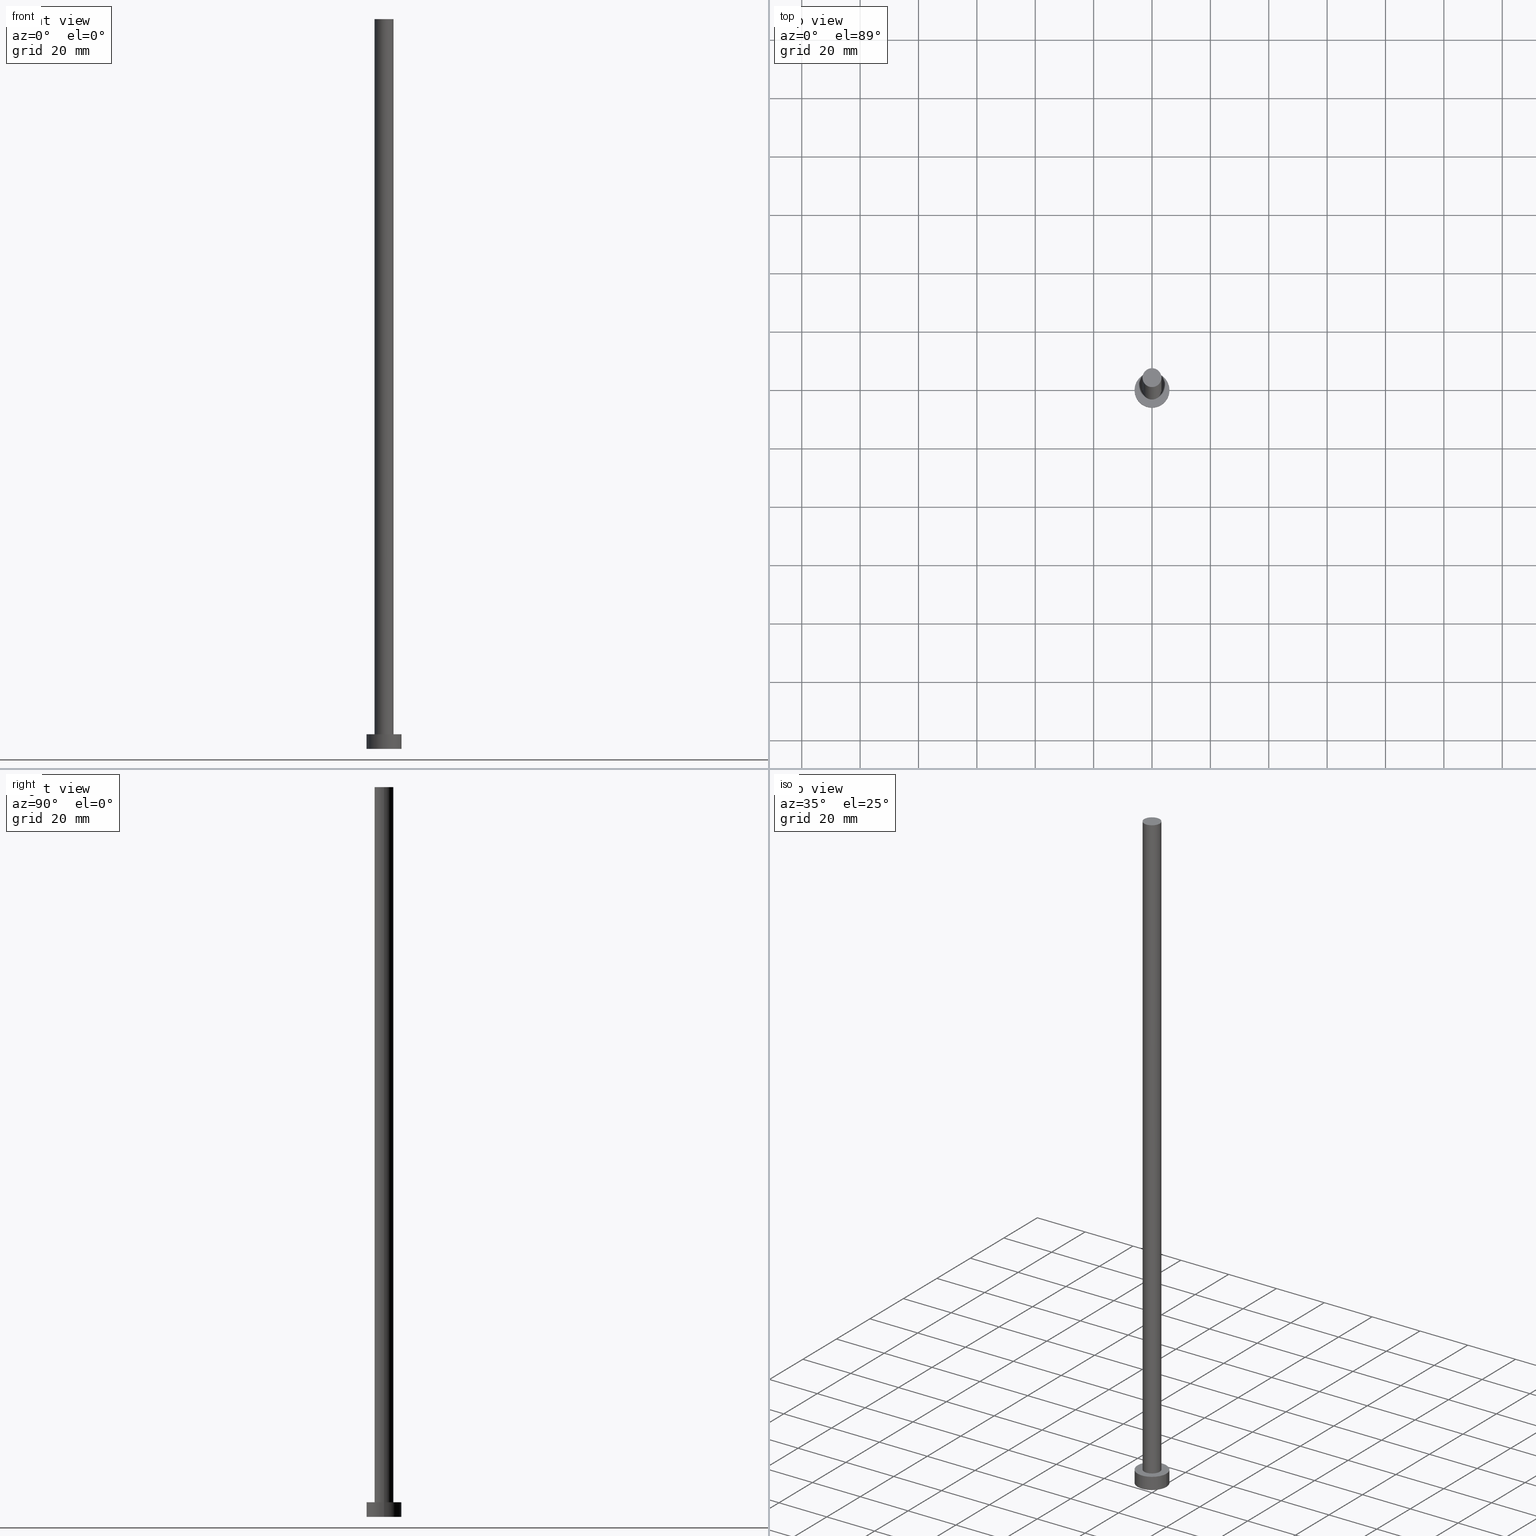
[diagram: canonical four-view strip — front | top / right | iso, engineering-drawing reading convention]
A machine part, canonical four-view strip (front | top / right | iso — engineering-drawing reading convention). The complete STEP part file that produces these views, byte-faithful:
ISO-10303-21;
HEADER;
FILE_DESCRIPTION (( 'STEP AP203' ),
    '1' );
FILE_NAME ('fc5c.STEP',
    '2023-02-13T14:52:59',
    ( '' ),
    ( '' ),
    'SwSTEP 2.0',
    'SolidWorks 2019',
    '' );
FILE_SCHEMA (( 'CONFIG_CONTROL_DESIGN' ));
ENDSEC;

DATA;
#1 = DIRECTION ( 'NONE',  ( -0.000000000000000000, -0.000000000000000000, -1.000000000000000000 ) ) ;
#2 = ORIENTED_EDGE ( 'NONE', *, *, #201, .F. ) ;
#3 = PERSON ( 'NEUR�EN�', 'NEUR�EN�', 'NEUR�EN�', ('NEUR�EN�'), ('NEUR�EN�'), ('NEUR�EN�') ) ;
#4 = DIRECTION ( 'NONE',  ( 0.000000000000000000, 0.000000000000000000, 1.000000000000000000 ) ) ;
#5 = ORIENTED_EDGE ( 'NONE', *, *, #43, .F. ) ;
#6 = DATE_AND_TIME ( #21, #34 ) ;
#7 = CIRCLE ( 'NONE', #137, 6.000000000000000888 ) ;
#8 = UNCERTAINTY_MEASURE_WITH_UNIT (LENGTH_MEASURE( 1.000000000000000082E-05 ), #249, 'distance_accuracy_value', 'NONE');
#9 = CIRCLE ( 'NONE', #33, 6.000000000000000888 ) ;
#10 = DIRECTION ( 'NONE',  ( 1.000000000000000000, 0.000000000000000000, 0.000000000000000000 ) ) ;
#11 = APPROVAL_PERSON_ORGANIZATION ( #226, #122, #71 ) ;
#12 = EDGE_CURVE ( 'NONE', #212, #174, #80, .T. ) ;
#13 = CARTESIAN_POINT ( 'NONE',  ( -3.250000000000000444, 0.000000000000000000, 5.000000000000000000 ) ) ;
#14 = APPROVAL ( #94, 'NEUR�EN�' ) ;
#15 = CARTESIAN_POINT ( 'NONE',  ( 3.250000000000000444, 3.980102097228898231E-16, 250.0000000000000000 ) ) ;
#16 = CYLINDRICAL_SURFACE ( 'NONE', #47, 3.250000000000000444 ) ;
#17 = CYLINDRICAL_SURFACE ( 'NONE', #56, 6.000000000000000888 ) ;
#18 = APPROVAL_DATE_TIME ( #111, #122 ) ;
#19 = DIRECTION ( 'NONE',  ( 0.000000000000000000, 0.000000000000000000, 1.000000000000000000 ) ) ;
#20 = PERSON_AND_ORGANIZATION ( #3, #91 ) ;
#21 = CALENDAR_DATE ( 2023, 13, 2 ) ;
#22 = CARTESIAN_POINT ( 'NONE',  ( 0.000000000000000000, 0.000000000000000000, 250.0000000000000000 ) ) ;
#23 = LINE ( 'NONE', #62, #110 ) ;
#24 = LOCAL_TIME ( 15, 52, 59.00000000000000000, #189 ) ;
#25 = CARTESIAN_POINT ( 'NONE',  ( 0.000000000000000000, 0.000000000000000000, 5.000000000000000000 ) ) ;
#26 = ORIENTED_EDGE ( 'NONE', *, *, #36, .T. ) ;
#27 = CLOSED_SHELL ( 'NONE', ( #86, #102, #156, #175, #54, #112, #192 ) ) ;
#28 = DIRECTION ( 'NONE',  ( 0.000000000000000000, 0.000000000000000000, 1.000000000000000000 ) ) ;
#29 = LINE ( 'NONE', #204, #244 ) ;
#30 = FACE_OUTER_BOUND ( 'NONE', #151, .T. ) ;
#31 = EDGE_LOOP ( 'NONE', ( #96, #164 ) ) ;
#32 = APPLICATION_PROTOCOL_DEFINITION ( 'international standard', 'config_control_design', 1994, #165 ) ;
#33 = AXIS2_PLACEMENT_3D ( 'NONE', #118, #193, #218 ) ;
#34 = LOCAL_TIME ( 15, 52, 59.00000000000000000, #190 ) ;
#35 = COORDINATED_UNIVERSAL_TIME_OFFSET ( 1, 0, .AHEAD. ) ;
#36 = EDGE_CURVE ( 'NONE', #233, #119, #88, .T. ) ;
#37 = PRODUCT_RELATED_PRODUCT_CATEGORY ( 'detail', '', ( #45 ) ) ;
#38 = APPROVAL_DATE_TIME ( #132, #205 ) ;
#39 = APPROVAL_ROLE ( '' ) ;
#40 = ORIENTED_EDGE ( 'NONE', *, *, #12, .T. ) ;
#41 = AXIS2_PLACEMENT_3D ( 'NONE', #68, #236, #69 ) ;
#42 = ORIENTED_EDGE ( 'NONE', *, *, #87, .T. ) ;
#43 = EDGE_CURVE ( 'NONE', #119, #210, #7, .T. ) ;
#44 = CC_DESIGN_APPROVAL ( #205, ( #187 ) ) ;
#45 = PRODUCT ( 'fc5c', 'fc5c', '', ( #127 ) ) ;
#46 = DIRECTION ( 'NONE',  ( 1.000000000000000000, 0.000000000000000000, 0.000000000000000000 ) ) ;
#47 = AXIS2_PLACEMENT_3D ( 'NONE', #202, #92, #166 ) ;
#48 = CC_DESIGN_APPROVAL ( #122, ( #53 ) ) ;
#49 = FACE_OUTER_BOUND ( 'NONE', #250, .T. ) ;
#50 = ADVANCED_BREP_SHAPE_REPRESENTATION ( 'fc5c', ( #116, #245 ), #199 ) ;
#51 = DIRECTION ( 'NONE',  ( 1.000000000000000000, 0.000000000000000000, -0.000000000000000000 ) ) ;
#52 = DIRECTION ( 'NONE',  ( -0.000000000000000000, -0.000000000000000000, -1.000000000000000000 ) ) ;
#53 = PRODUCT_DEFINITION ( 'NEZN�M�', '', #187, #157 ) ;
#54 = ADVANCED_FACE ( 'NONE', ( #182 ), #221, .F. ) ;
#55 = APPROVAL_STATUS ( 'not_yet_approved' ) ;
#56 = AXIS2_PLACEMENT_3D ( 'NONE', #89, #240, #123 ) ;
#57 = COORDINATED_UNIVERSAL_TIME_OFFSET ( 1, 0, .AHEAD. ) ;
#58 = PERSON_AND_ORGANIZATION ( #3, #91 ) ;
#59 = ORIENTED_EDGE ( 'NONE', *, *, #243, .T. ) ;
#60 = CARTESIAN_POINT ( 'NONE',  ( 0.000000000000000000, 0.000000000000000000, 5.000000000000000000 ) ) ;
#61 = ORIENTED_EDGE ( 'NONE', *, *, #243, .F. ) ;
#62 = CARTESIAN_POINT ( 'NONE',  ( -3.250000000000000444, 0.000000000000000000, 250.0000000000000000 ) ) ;
#63 = ORIENTED_EDGE ( 'NONE', *, *, #43, .T. ) ;
#64 = ORIENTED_EDGE ( 'NONE', *, *, #67, .F. ) ;
#65 = CIRCLE ( 'NONE', #143, 6.000000000000000888 ) ;
#66 = FACE_OUTER_BOUND ( 'NONE', #115, .T. ) ;
#67 = EDGE_CURVE ( 'NONE', #233, #82, #65, .T. ) ;
#68 = CARTESIAN_POINT ( 'NONE',  ( 0.000000000000000000, 0.000000000000000000, 5.000000000000000000 ) ) ;
#69 = DIRECTION ( 'NONE',  ( 1.000000000000000000, 0.000000000000000000, 0.000000000000000000 ) ) ;
#70 = DIRECTION ( 'NONE',  ( 1.000000000000000000, 0.000000000000000000, 0.000000000000000000 ) ) ;
#71 = APPROVAL_ROLE ( '' ) ;
#72 = CC_DESIGN_PERSON_AND_ORGANIZATION_ASSIGNMENT ( #207, #74, ( #187 ) ) ;
#73 = DATE_AND_TIME ( #95, #24 ) ;
#74 = PERSON_AND_ORGANIZATION_ROLE ( 'design_supplier' ) ;
#75 = AXIS2_PLACEMENT_3D ( 'NONE', #22, #135, #10 ) ;
#76 = CC_DESIGN_APPROVAL ( #14, ( #160 ) ) ;
#77 = DIRECTION ( 'NONE',  ( 1.000000000000000000, 0.000000000000000000, -0.000000000000000000 ) ) ;
#78 = EDGE_CURVE ( 'NONE', #82, #233, #235, .T. ) ;
#79 = VERTEX_POINT ( 'NONE', #146 ) ;
#80 = CIRCLE ( 'NONE', #108, 3.250000000000000444 ) ;
#81 = FACE_OUTER_BOUND ( 'NONE', #31, .T. ) ;
#82 = VERTEX_POINT ( 'NONE', #161 ) ;
#83 = AXIS2_PLACEMENT_3D ( 'NONE', #60, #117, #46 ) ;
#84 = DIRECTION ( 'NONE',  ( -0.000000000000000000, -0.000000000000000000, -1.000000000000000000 ) ) ;
#85 = DIRECTION ( 'NONE',  ( -0.000000000000000000, -0.000000000000000000, -1.000000000000000000 ) ) ;
#86 = ADVANCED_FACE ( 'NONE', ( #124 ), #16, .T. ) ;
#87 = EDGE_CURVE ( 'NONE', #174, #79, #29, .T. ) ;
#88 = LINE ( 'NONE', #203, #251 ) ;
#89 = CARTESIAN_POINT ( 'NONE',  ( 0.000000000000000000, 0.000000000000000000, 5.000000000000000000 ) ) ;
#90 = CARTESIAN_POINT ( 'NONE',  ( 0.000000000000000000, 0.000000000000000000, 0.000000000000000000 ) ) ;
#91 = ORGANIZATION ( 'NEUR�EN�', 'NEUR�EN�', '' ) ;
#92 = DIRECTION ( 'NONE',  ( -0.000000000000000000, -0.000000000000000000, -1.000000000000000000 ) ) ;
#93 = DATE_TIME_ROLE ( 'creation_date' ) ;
#94 = APPROVAL_STATUS ( 'not_yet_approved' ) ;
#95 = CALENDAR_DATE ( 2023, 13, 2 ) ;
#96 = ORIENTED_EDGE ( 'NONE', *, *, #67, .T. ) ;
#97 = CARTESIAN_POINT ( 'NONE',  ( 0.000000000000000000, 0.000000000000000000, 5.000000000000000000 ) ) ;
#98 = LINE ( 'NONE', #173, #120 ) ;
#99 = CARTESIAN_POINT ( 'NONE',  ( 0.000000000000000000, 0.000000000000000000, 250.0000000000000000 ) ) ;
#100 = VERTEX_POINT ( 'NONE', #13 ) ;
#101 = DIRECTION ( 'NONE',  ( 1.000000000000000000, 0.000000000000000000, -0.000000000000000000 ) ) ;
#102 = ADVANCED_FACE ( 'NONE', ( #66 ), #239, .T. ) ;
#103 = CYLINDRICAL_SURFACE ( 'NONE', #159, 3.250000000000000444 ) ;
#104 = CC_DESIGN_DATE_AND_TIME_ASSIGNMENT ( #73, #149, ( #160 ) ) ;
#105 = DIRECTION ( 'NONE',  ( 1.000000000000000000, 0.000000000000000000, 0.000000000000000000 ) ) ;
#106 = CARTESIAN_POINT ( 'NONE',  ( -6.000000000000000888, 0.000000000000000000, 0.000000000000000000 ) ) ;
#107 = DIRECTION ( 'NONE',  ( 0.000000000000000000, 0.000000000000000000, 1.000000000000000000 ) ) ;
#108 = AXIS2_PLACEMENT_3D ( 'NONE', #162, #126, #179 ) ;
#109 = ORIENTED_EDGE ( 'NONE', *, *, #247, .T. ) ;
#110 = VECTOR ( 'NONE', #84, 1000.000000000000000 ) ;
#111 = DATE_AND_TIME ( #147, #140 ) ;
#112 = ADVANCED_FACE ( 'NONE', ( #30 ), #103, .T. ) ;
#113 = PERSON_AND_ORGANIZATION_ROLE ( 'classification_officer' ) ;
#114 = CIRCLE ( 'NONE', #75, 3.250000000000000444 ) ;
#115 = EDGE_LOOP ( 'NONE', ( #170, #109, #125, #234 ) ) ;
#116 = MANIFOLD_SOLID_BREP ( 'P�idat vysunut�m3', #27 ) ;
#117 = DIRECTION ( 'NONE',  ( 0.000000000000000000, 0.000000000000000000, 1.000000000000000000 ) ) ;
#118 = CARTESIAN_POINT ( 'NONE',  ( 0.000000000000000000, 0.000000000000000000, 0.000000000000000000 ) ) ;
#119 = VERTEX_POINT ( 'NONE', #106 ) ;
#120 = VECTOR ( 'NONE', #1, 1000.000000000000000 ) ;
#121 = APPROVAL_PERSON_ORGANIZATION ( #58, #205, #39 ) ;
#122 = APPROVAL ( #55, 'NEUR�EN�' ) ;
#123 = DIRECTION ( 'NONE',  ( -1.000000000000000000, 0.000000000000000000, 0.000000000000000000 ) ) ;
#124 = FACE_OUTER_BOUND ( 'NONE', #155, .T. ) ;
#125 = ORIENTED_EDGE ( 'NONE', *, *, #237, .T. ) ;
#126 = DIRECTION ( 'NONE',  ( 0.000000000000000000, 0.000000000000000000, 1.000000000000000000 ) ) ;
#127 = MECHANICAL_CONTEXT ( 'NONE', #138, 'mechanical' ) ;
#128 = PERSON_AND_ORGANIZATION ( #3, #91 ) ;
#129 = CC_DESIGN_SECURITY_CLASSIFICATION ( #160, ( #187 ) ) ;
#130 = CALENDAR_DATE ( 2023, 13, 2 ) ;
#131 = CC_DESIGN_PERSON_AND_ORGANIZATION_ASSIGNMENT ( #228, #113, ( #160 ) ) ;
#132 = DATE_AND_TIME ( #130, #216 ) ;
#133 = DIRECTION ( 'NONE',  ( 0.000000000000000000, 0.000000000000000000, 1.000000000000000000 ) ) ;
#134 = EDGE_LOOP ( 'NONE', ( #2, #231 ) ) ;
#135 = DIRECTION ( 'NONE',  ( 0.000000000000000000, 0.000000000000000000, 1.000000000000000000 ) ) ;
#136 =( NAMED_UNIT ( * ) SI_UNIT ( $, .STERADIAN. ) SOLID_ANGLE_UNIT ( ) );
#137 = AXIS2_PLACEMENT_3D ( 'NONE', #238, #186, #183 ) ;
#138 = APPLICATION_CONTEXT ( 'configuration controlled 3d designs of mechanical parts and assemblies' ) ;
#139 = CC_DESIGN_PERSON_AND_ORGANIZATION_ASSIGNMENT ( #128, #206, ( #53 ) ) ;
#140 = LOCAL_TIME ( 15, 52, 59.00000000000000000, #188 ) ;
#141 = DIRECTION ( 'NONE',  ( -1.000000000000000000, 0.000000000000000000, 0.000000000000000000 ) ) ;
#142 = CARTESIAN_POINT ( 'NONE',  ( 0.000000000000000000, 0.000000000000000000, 0.000000000000000000 ) ) ;
#143 = AXIS2_PLACEMENT_3D ( 'NONE', #181, #28, #105 ) ;
#144 = CARTESIAN_POINT ( 'NONE',  ( 0.000000000000000000, 0.000000000000000000, 5.000000000000000000 ) ) ;
#145 = APPROVAL_PERSON_ORGANIZATION ( #20, #14, #208 ) ;
#146 = CARTESIAN_POINT ( 'NONE',  ( 3.250000000000000444, 3.980102097228898231E-16, 5.000000000000000000 ) ) ;
#147 = CALENDAR_DATE ( 2023, 13, 2 ) ;
#148 = CIRCLE ( 'NONE', #83, 3.250000000000000444 ) ;
#149 = DATE_TIME_ROLE ( 'classification_date' ) ;
#150 = SECURITY_CLASSIFICATION_LEVEL ( 'unclassified' ) ;
#151 = EDGE_LOOP ( 'NONE', ( #254, #177, #59, #191 ) ) ;
#152 = ORIENTED_EDGE ( 'NONE', *, *, #237, .F. ) ;
#153 = APPROVAL_DATE_TIME ( #6, #14 ) ;
#154 = ORIENTED_EDGE ( 'NONE', *, *, #213, .T. ) ;
#155 = EDGE_LOOP ( 'NONE', ( #200, #42, #215, #61 ) ) ;
#156 = ADVANCED_FACE ( 'NONE', ( #49 ), #17, .T. ) ;
#157 = DESIGN_CONTEXT ( 'detailed design', #165, 'design' ) ;
#158 = CC_DESIGN_PERSON_AND_ORGANIZATION_ASSIGNMENT ( #168, #246, ( #187 ) ) ;
#159 = AXIS2_PLACEMENT_3D ( 'NONE', #224, #85, #220 ) ;
#160 = SECURITY_CLASSIFICATION ( '', '', #150 ) ;
#161 = CARTESIAN_POINT ( 'NONE',  ( 6.000000000000000888, 7.347880794884120722E-16, 5.000000000000000000 ) ) ;
#162 = CARTESIAN_POINT ( 'NONE',  ( 0.000000000000000000, 0.000000000000000000, 250.0000000000000000 ) ) ;
#163 = DIRECTION ( 'NONE',  ( -0.000000000000000000, -0.000000000000000000, -1.000000000000000000 ) ) ;
#164 = ORIENTED_EDGE ( 'NONE', *, *, #78, .T. ) ;
#165 = APPLICATION_CONTEXT ( 'configuration controlled 3d designs of mechanical parts and assemblies' ) ;
#166 = DIRECTION ( 'NONE',  ( -1.000000000000000000, 0.000000000000000000, 0.000000000000000000 ) ) ;
#167 = PERSON_AND_ORGANIZATION_ROLE ( 'design_owner' ) ;
#168 = PERSON_AND_ORGANIZATION ( #3, #91 ) ;
#169 = CARTESIAN_POINT ( 'NONE',  ( -3.250000000000000444, 0.000000000000000000, 250.0000000000000000 ) ) ;
#170 = ORIENTED_EDGE ( 'NONE', *, *, #78, .F. ) ;
#171 = AXIS2_PLACEMENT_3D ( 'NONE', #142, #19, #51 ) ;
#172 = FACE_BOUND ( 'NONE', #134, .T. ) ;
#173 = CARTESIAN_POINT ( 'NONE',  ( 6.000000000000000888, 7.347880794884120722E-16, 5.000000000000000000 ) ) ;
#174 = VERTEX_POINT ( 'NONE', #15 ) ;
#175 = ADVANCED_FACE ( 'NONE', ( #172, #81 ), #176, .T. ) ;
#176 = PLANE ( 'NONE',  #185 ) ;
#177 = ORIENTED_EDGE ( 'NONE', *, *, #12, .F. ) ;
#178 = CARTESIAN_POINT ( 'NONE',  ( 6.000000000000000888, 7.347880794884120722E-16, 0.000000000000000000 ) ) ;
#179 = DIRECTION ( 'NONE',  ( 1.000000000000000000, 0.000000000000000000, 0.000000000000000000 ) ) ;
#180 = AXIS2_PLACEMENT_3D ( 'NONE', #144, #223, #141 ) ;
#181 = CARTESIAN_POINT ( 'NONE',  ( 0.000000000000000000, 0.000000000000000000, 5.000000000000000000 ) ) ;
#182 = FACE_OUTER_BOUND ( 'NONE', #197, .T. ) ;
#183 = DIRECTION ( 'NONE',  ( 1.000000000000000000, 0.000000000000000000, 0.000000000000000000 ) ) ;
#184 = PERSON_AND_ORGANIZATION ( #3, #91 ) ;
#185 = AXIS2_PLACEMENT_3D ( 'NONE', #25, #133, #101 ) ;
#186 = DIRECTION ( 'NONE',  ( 0.000000000000000000, 0.000000000000000000, 1.000000000000000000 ) ) ;
#187 = PRODUCT_DEFINITION_FORMATION_WITH_SPECIFIED_SOURCE ( 'LIBOVOLN�', '', #45, .NOT_KNOWN. ) ;
#188 = COORDINATED_UNIVERSAL_TIME_OFFSET ( 1, 0, .AHEAD. ) ;
#189 = COORDINATED_UNIVERSAL_TIME_OFFSET ( 1, 0, .AHEAD. ) ;
#190 = COORDINATED_UNIVERSAL_TIME_OFFSET ( 1, 0, .AHEAD. ) ;
#191 = ORIENTED_EDGE ( 'NONE', *, *, #201, .T. ) ;
#192 = ADVANCED_FACE ( 'NONE', ( #253 ), #196, .T. ) ;
#193 = DIRECTION ( 'NONE',  ( 0.000000000000000000, 0.000000000000000000, 1.000000000000000000 ) ) ;
#194 = ORIENTED_EDGE ( 'NONE', *, *, #247, .F. ) ;
#195 = EDGE_CURVE ( 'NONE', #79, #100, #148, .T. ) ;
#196 = PLANE ( 'NONE',  #198 ) ;
#197 = EDGE_LOOP ( 'NONE', ( #5, #152 ) ) ;
#198 = AXIS2_PLACEMENT_3D ( 'NONE', #99, #209, #77 ) ;
#199 =( GEOMETRIC_REPRESENTATION_CONTEXT ( 3 ) GLOBAL_UNCERTAINTY_ASSIGNED_CONTEXT ( ( #8 ) ) GLOBAL_UNIT_ASSIGNED_CONTEXT ( ( #249, #214, #136 ) ) REPRESENTATION_CONTEXT ( 'NONE', 'WORKASPACE' ) );
#200 = ORIENTED_EDGE ( 'NONE', *, *, #213, .F. ) ;
#201 = EDGE_CURVE ( 'NONE', #100, #79, #252, .T. ) ;
#202 = CARTESIAN_POINT ( 'NONE',  ( 0.000000000000000000, 0.000000000000000000, 250.0000000000000000 ) ) ;
#203 = CARTESIAN_POINT ( 'NONE',  ( -6.000000000000000888, 0.000000000000000000, 5.000000000000000000 ) ) ;
#204 = CARTESIAN_POINT ( 'NONE',  ( 3.250000000000000444, 3.980102097228898231E-16, 250.0000000000000000 ) ) ;
#205 = APPROVAL ( #227, 'NEUR�EN�' ) ;
#206 = PERSON_AND_ORGANIZATION_ROLE ( 'creator' ) ;
#207 = PERSON_AND_ORGANIZATION ( #3, #91 ) ;
#208 = APPROVAL_ROLE ( '' ) ;
#209 = DIRECTION ( 'NONE',  ( 0.000000000000000000, 0.000000000000000000, 1.000000000000000000 ) ) ;
#210 = VERTEX_POINT ( 'NONE', #178 ) ;
#211 = CARTESIAN_POINT ( 'NONE',  ( -6.000000000000000888, 0.000000000000000000, 5.000000000000000000 ) ) ;
#212 = VERTEX_POINT ( 'NONE', #169 ) ;
#213 = EDGE_CURVE ( 'NONE', #174, #212, #114, .T. ) ;
#214 =( NAMED_UNIT ( * ) PLANE_ANGLE_UNIT ( ) SI_UNIT ( $, .RADIAN. ) );
#215 = ORIENTED_EDGE ( 'NONE', *, *, #195, .T. ) ;
#216 = LOCAL_TIME ( 15, 52, 59.00000000000000000, #57 ) ;
#217 = PRODUCT_DEFINITION_SHAPE ( 'NONE', 'NONE',  #53 ) ;
#218 = DIRECTION ( 'NONE',  ( 1.000000000000000000, 0.000000000000000000, 0.000000000000000000 ) ) ;
#219 = EDGE_LOOP ( 'NONE', ( #40, #154 ) ) ;
#220 = DIRECTION ( 'NONE',  ( -1.000000000000000000, 0.000000000000000000, 0.000000000000000000 ) ) ;
#221 = PLANE ( 'NONE',  #171 ) ;
#222 = AXIS2_PLACEMENT_3D ( 'NONE', #97, #4, #229 ) ;
#223 = DIRECTION ( 'NONE',  ( -0.000000000000000000, -0.000000000000000000, -1.000000000000000000 ) ) ;
#224 = CARTESIAN_POINT ( 'NONE',  ( 0.000000000000000000, 0.000000000000000000, 250.0000000000000000 ) ) ;
#225 = APPLICATION_PROTOCOL_DEFINITION ( 'international standard', 'config_control_design', 1994, #138 ) ;
#226 = PERSON_AND_ORGANIZATION ( #3, #91 ) ;
#227 = APPROVAL_STATUS ( 'not_yet_approved' ) ;
#228 = PERSON_AND_ORGANIZATION ( #3, #91 ) ;
#229 = DIRECTION ( 'NONE',  ( 1.000000000000000000, 0.000000000000000000, 0.000000000000000000 ) ) ;
#230 = LOCAL_TIME ( 15, 52, 59.00000000000000000, #35 ) ;
#231 = ORIENTED_EDGE ( 'NONE', *, *, #195, .F. ) ;
#232 = SHAPE_DEFINITION_REPRESENTATION ( #217, #50 ) ;
#233 = VERTEX_POINT ( 'NONE', #211 ) ;
#234 = ORIENTED_EDGE ( 'NONE', *, *, #36, .F. ) ;
#235 = CIRCLE ( 'NONE', #41, 6.000000000000000888 ) ;
#236 = DIRECTION ( 'NONE',  ( 0.000000000000000000, 0.000000000000000000, 1.000000000000000000 ) ) ;
#237 = EDGE_CURVE ( 'NONE', #210, #119, #9, .T. ) ;
#238 = CARTESIAN_POINT ( 'NONE',  ( 0.000000000000000000, 0.000000000000000000, 0.000000000000000000 ) ) ;
#239 = CYLINDRICAL_SURFACE ( 'NONE', #180, 6.000000000000000888 ) ;
#240 = DIRECTION ( 'NONE',  ( -0.000000000000000000, -0.000000000000000000, -1.000000000000000000 ) ) ;
#241 = CALENDAR_DATE ( 2023, 13, 2 ) ;
#242 = CC_DESIGN_PERSON_AND_ORGANIZATION_ASSIGNMENT ( #184, #167, ( #45 ) ) ;
#243 = EDGE_CURVE ( 'NONE', #212, #100, #23, .T. ) ;
#244 = VECTOR ( 'NONE', #163, 1000.000000000000000 ) ;
#245 = AXIS2_PLACEMENT_3D ( 'NONE', #90, #107, #70 ) ;
#246 = PERSON_AND_ORGANIZATION_ROLE ( 'creator' ) ;
#247 = EDGE_CURVE ( 'NONE', #82, #210, #98, .T. ) ;
#248 = DATE_AND_TIME ( #241, #230 ) ;
#249 =( LENGTH_UNIT ( ) NAMED_UNIT ( * ) SI_UNIT ( .MILLI., .METRE. ) );
#250 = EDGE_LOOP ( 'NONE', ( #194, #64, #26, #63 ) ) ;
#251 = VECTOR ( 'NONE', #52, 1000.000000000000000 ) ;
#252 = CIRCLE ( 'NONE', #222, 3.250000000000000444 ) ;
#253 = FACE_OUTER_BOUND ( 'NONE', #219, .T. ) ;
#254 = ORIENTED_EDGE ( 'NONE', *, *, #87, .F. ) ;
#255 = CC_DESIGN_DATE_AND_TIME_ASSIGNMENT ( #248, #93, ( #53 ) ) ;
ENDSEC;
END-ISO-10303-21;
